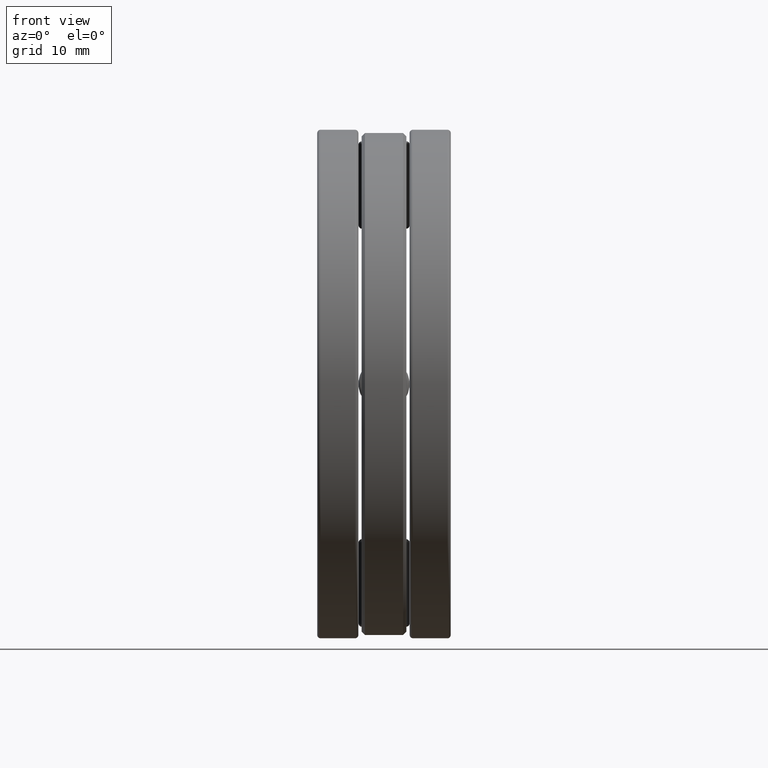
[diagram: clean part render]
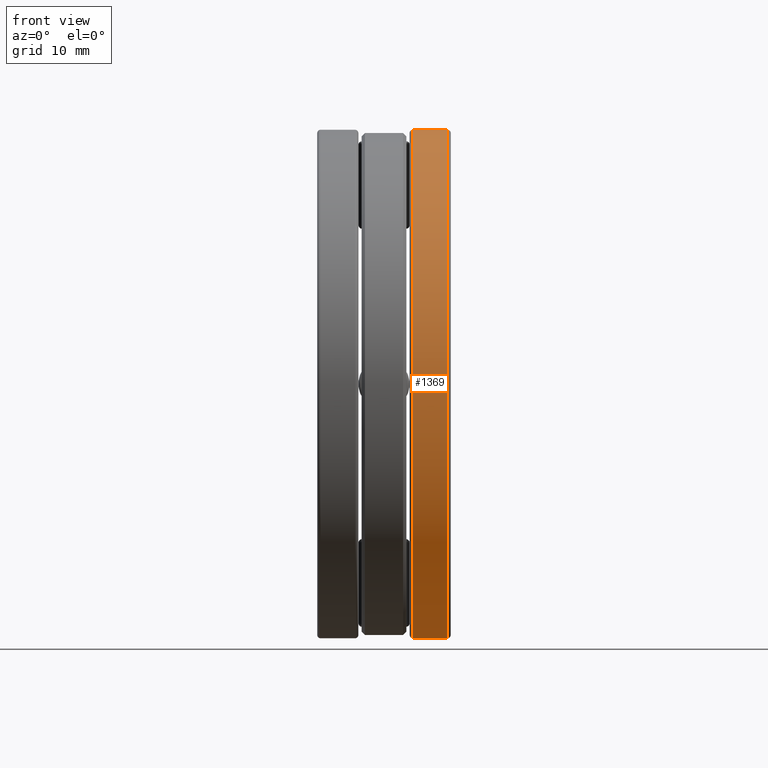
[diagram: same view with one face highlighted and labeled with its STEP entity id]
A machine part, front view. The second image highlights one B-rep face of the part: STEP entity #1369.
In plain terms, the highlighted cylindrical surface (bore or boss wall) has radius 39.2906 mm, axis along (-1, -0, -0).
Its self-contained STEP definition (entity closure, byte-faithful):
#32 = AXIS2_PLACEMENT_3D ( 'NONE', #184, #410, #1082 ) ;
#154 = CIRCLE ( 'NONE', #32, 1.546875000000000200 ) ;
#184 = CARTESIAN_POINT ( 'NONE',  ( 0.1759999999999997100, 0.0000000000000000000, 0.0000000000000000000 ) ) ;
#200 = AXIS2_PLACEMENT_3D ( 'NONE', #256, #1267, #799 ) ;
#255 = FACE_OUTER_BOUND ( 'NONE', #928, .T. ) ;
#256 = CARTESIAN_POINT ( 'NONE',  ( 0.3860000000000004000, 0.0000000000000000000, 0.0000000000000000000 ) ) ;
#410 = DIRECTION ( 'NONE',  ( -1.000000000000000000, -0.0000000000000000000, -0.0000000000000000000 ) ) ;
#494 = EDGE_LOOP ( 'NONE', ( #1074 ) ) ;
#541 = CARTESIAN_POINT ( 'NONE',  ( 0.0000000000000000000, 0.0000000000000000000, 0.0000000000000000000 ) ) ;
#592 = ORIENTED_EDGE ( 'NONE', *, *, #749, .T. ) ;
#619 = FACE_OUTER_BOUND ( 'NONE', #494, .T. ) ;
#749 = EDGE_CURVE ( 'NONE', #1198, #1198, #1303, .T. ) ;
#799 = DIRECTION ( 'NONE',  ( 0.0000000000000000000, 0.0000000000000000000, 1.000000000000000000 ) ) ;
#928 = EDGE_LOOP ( 'NONE', ( #592 ) ) ;
#1003 = CARTESIAN_POINT ( 'NONE',  ( 0.3860000000000004000, 0.0000000000000000000, 1.546875000000000200 ) ) ;
#1010 = CYLINDRICAL_SURFACE ( 'NONE', #1302, 1.546875000000000200 ) ;
#1074 = ORIENTED_EDGE ( 'NONE', *, *, #1085, .F. ) ;
#1082 = DIRECTION ( 'NONE',  ( 0.0000000000000000000, 0.0000000000000000000, 1.000000000000000000 ) ) ;
#1085 = EDGE_CURVE ( 'NONE', #1360, #1360, #154, .T. ) ;
#1198 = VERTEX_POINT ( 'NONE', #1003 ) ;
#1254 = DIRECTION ( 'NONE',  ( -1.000000000000000000, -0.0000000000000000000, -0.0000000000000000000 ) ) ;
#1267 = DIRECTION ( 'NONE',  ( -1.000000000000000000, -0.0000000000000000000, -0.0000000000000000000 ) ) ;
#1302 = AXIS2_PLACEMENT_3D ( 'NONE', #541, #1254, #1331 ) ;
#1303 = CIRCLE ( 'NONE', #200, 1.546875000000000200 ) ;
#1331 = DIRECTION ( 'NONE',  ( 0.0000000000000000000, 0.0000000000000000000, 1.000000000000000000 ) ) ;
#1335 = CARTESIAN_POINT ( 'NONE',  ( 0.1759999999999997100, 0.0000000000000000000, 1.546875000000000200 ) ) ;
#1360 = VERTEX_POINT ( 'NONE', #1335 ) ;
#1369 = ADVANCED_FACE ( 'NONE', ( #619, #255 ), #1010, .T. ) ;